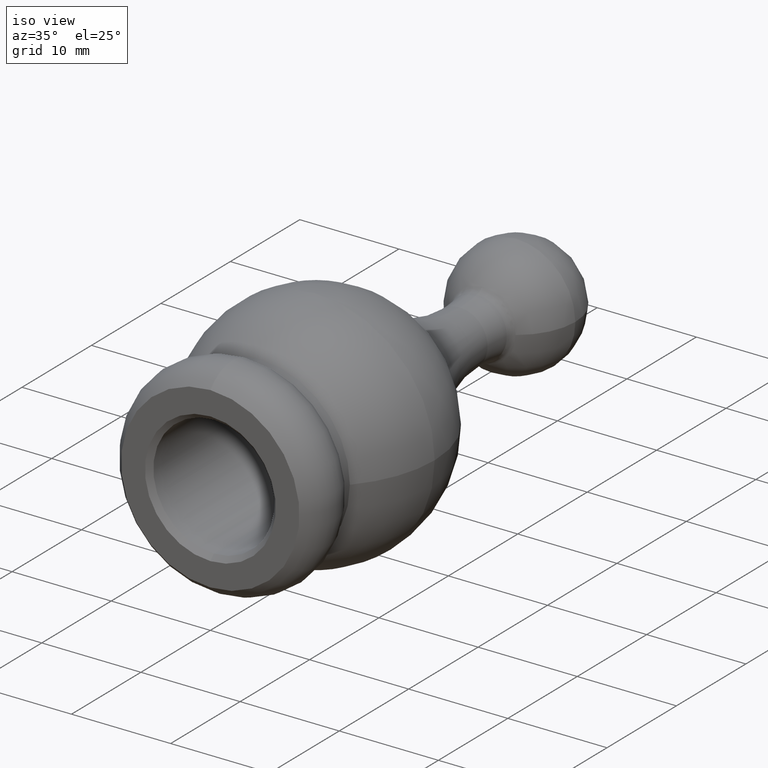
[diagram: clean part render]
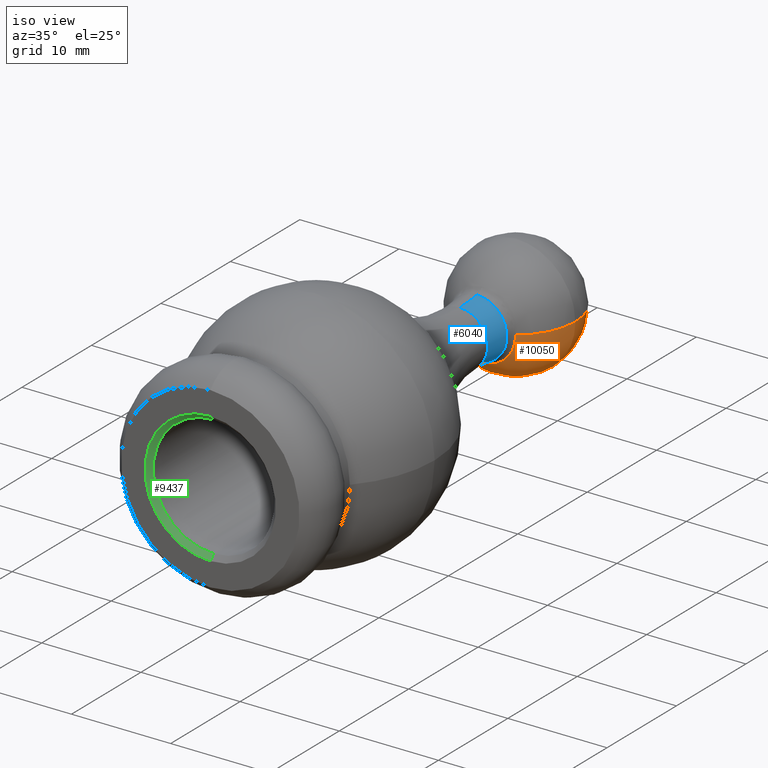
[diagram: same view with three faces highlighted in distinct colors, each labeled with its STEP entity id]
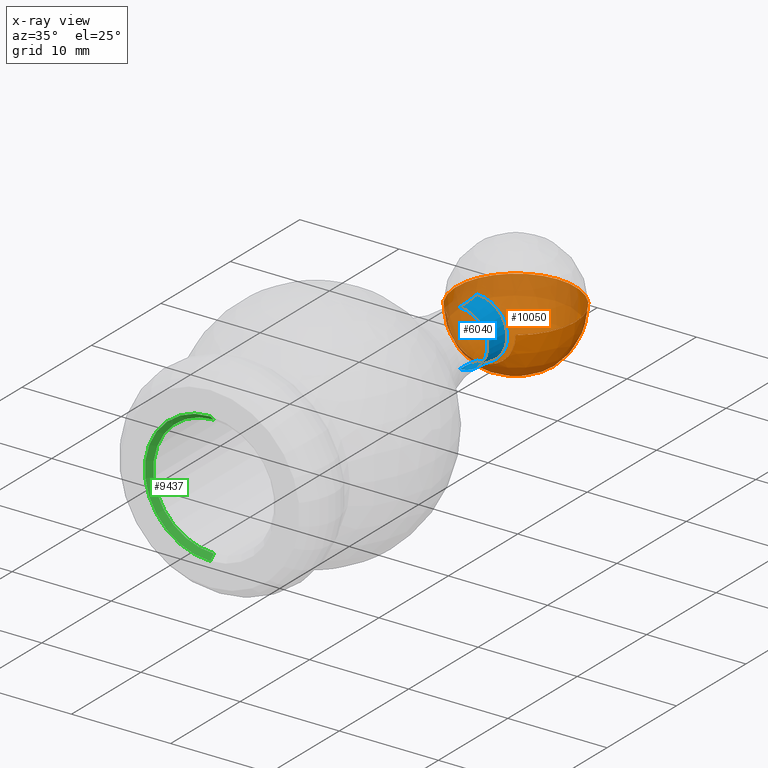
[diagram: x-ray of the same camera — body ghosted, the three highlighted faces saturated]
A machine part, iso view with three faces highlighted in distinct colors.
The next image is the same camera in x-ray (body ghosted, the three faces saturated) — at least one of them is partly hidden behind the body in this view.
Their STEP definitions:

[orange] entity #10050 — the highlighted spherical surface has radius 6 mm.
#104 = CARTESIAN_POINT ( 'NONE',  ( -3.428571428571427049, 39.07608916011026423, 4.198789025648066308E-16 ) ) ;
#190 = AXIS2_PLACEMENT_3D ( 'NONE', #7411, #6553, #7473 ) ;
#1331 = VERTEX_POINT ( 'NONE', #6023 ) ;
#1446 = AXIS2_PLACEMENT_3D ( 'NONE', #4672, #4974, #2339 ) ;
#1498 = ORIENTED_EDGE ( 'NONE', *, *, #3612, .T. ) ;
#1988 = CARTESIAN_POINT ( 'NONE',  ( 0.000000000000000000, 39.07608916011026423, 0.000000000000000000 ) ) ;
#2337 = DIRECTION ( 'NONE',  ( 0.000000000000000000, 0.000000000000000000, -1.000000000000000000 ) ) ;
#2339 = DIRECTION ( 'NONE',  ( 1.000000000000000000, 0.000000000000000000, 0.000000000000000000 ) ) ;
#2481 = AXIS2_PLACEMENT_3D ( 'NONE', #5002, #11061, #2337 ) ;
#2549 = VERTEX_POINT ( 'NONE', #8141 ) ;
#2925 = AXIS2_PLACEMENT_3D ( 'NONE', #8712, #11137, #5209 ) ;
#3338 = EDGE_CURVE ( 'NONE', #1331, #5546, #5086, .T. ) ;
#3530 = VERTEX_POINT ( 'NONE', #11106 ) ;
#3612 = EDGE_CURVE ( 'NONE', #1331, #3530, #3995, .T. ) ;
#3995 = CIRCLE ( 'NONE', #2925, 5.999999999999998224 ) ;
#4462 = SPHERICAL_SURFACE ( 'NONE', #1446, 5.999999999999998224 ) ;
#4554 = DIRECTION ( 'NONE',  ( 0.000000000000000000, 0.000000000000000000, -1.000000000000000000 ) ) ;
#4672 = CARTESIAN_POINT ( 'NONE',  ( 0.000000000000000000, 44.00000000000000711, 0.000000000000000000 ) ) ;
#4974 = DIRECTION ( 'NONE',  ( 0.000000000000000000, 0.000000000000000000, 1.000000000000000000 ) ) ;
#5002 = CARTESIAN_POINT ( 'NONE',  ( 0.000000000000000000, 39.07608916011026423, 0.000000000000000000 ) ) ;
#5086 = CIRCLE ( 'NONE', #190, 5.999999999999998224 ) ;
#5209 = DIRECTION ( 'NONE',  ( -1.000000000000000000, 0.000000000000000000, 0.000000000000000000 ) ) ;
#5546 = VERTEX_POINT ( 'NONE', #104 ) ;
#6023 = CARTESIAN_POINT ( 'NONE',  ( 3.673940397442058882E-16, 50.00000000000000000, 0.000000000000000000 ) ) ;
#6391 = FACE_OUTER_BOUND ( 'NONE', #10052, .T. ) ;
#6410 = CIRCLE ( 'NONE', #2481, 3.428571428571426605 ) ;
#6553 = DIRECTION ( 'NONE',  ( 1.224646799147353207E-16, -0.000000000000000000, 1.000000000000000000 ) ) ;
#6820 = ORIENTED_EDGE ( 'NONE', *, *, #8750, .F. ) ;
#7058 = EDGE_CURVE ( 'NONE', #2549, #3530, #11297, .T. ) ;
#7407 = ORIENTED_EDGE ( 'NONE', *, *, #3338, .F. ) ;
#7411 = CARTESIAN_POINT ( 'NONE',  ( 0.000000000000000000, 44.00000000000000711, 0.000000000000000000 ) ) ;
#7473 = DIRECTION ( 'NONE',  ( 1.000000000000000000, 0.000000000000000000, -1.224646799147353207E-16 ) ) ;
#8129 = DIRECTION ( 'NONE',  ( -0.000000000000000000, -1.000000000000000000, -0.000000000000000000 ) ) ;
#8141 = CARTESIAN_POINT ( 'NONE',  ( 0.000000000000000000, 39.07608916011026423, -3.428571428571425717 ) ) ;
#8712 = CARTESIAN_POINT ( 'NONE',  ( 0.000000000000000000, 44.00000000000000711, 0.000000000000000000 ) ) ;
#8750 = EDGE_CURVE ( 'NONE', #5546, #2549, #6410, .T. ) ;
#8850 = ORIENTED_EDGE ( 'NONE', *, *, #7058, .F. ) ;
#10050 = ADVANCED_FACE ( 'NONE', ( #6391 ), #4462, .T. ) ;
#10052 = EDGE_LOOP ( 'NONE', ( #7407, #1498, #8850, #6820 ) ) ;
#11061 = DIRECTION ( 'NONE',  ( -0.000000000000000000, -1.000000000000000000, -0.000000000000000000 ) ) ;
#11090 = AXIS2_PLACEMENT_3D ( 'NONE', #1988, #8129, #4554 ) ;
#11106 = CARTESIAN_POINT ( 'NONE',  ( 3.428571428571427049, 39.07608916011026423, 0.000000000000000000 ) ) ;
#11137 = DIRECTION ( 'NONE',  ( 0.000000000000000000, 0.000000000000000000, -1.000000000000000000 ) ) ;
#11297 = CIRCLE ( 'NONE', #11090, 3.428571428571426605 ) ;

[blue] entity #6040 — the highlighted toroidal blend (fillet) surface has major radius 18.8166 mm and minor (blend) radius 16 mm.
#398 = CIRCLE ( 'NONE', #8197, 2.816621483785176849 ) ;
#639 = CARTESIAN_POINT ( 'NONE',  ( 0.000000000000000000, 35.91712005116201567, 0.000000000000000000 ) ) ;
#682 = DIRECTION ( 'NONE',  ( 0.000000000000000000, 0.000000000000000000, -1.000000000000000000 ) ) ;
#760 = DIRECTION ( 'NONE',  ( 1.000000000000000000, 0.000000000000000000, -1.224646799147353207E-16 ) ) ;
#1265 = CARTESIAN_POINT ( 'NONE',  ( 0.000000000000000000, 35.91712005116201567, -18.81662148378517685 ) ) ;
#1537 = CARTESIAN_POINT ( 'NONE',  ( 0.000000000000000000, 38.41132517361530319, -3.012225234414318997 ) ) ;
#2422 = DIRECTION ( 'NONE',  ( -1.224646799147353207E-16, 0.000000000000000000, -1.000000000000000000 ) ) ;
#2427 = ORIENTED_EDGE ( 'NONE', *, *, #7688, .F. ) ;
#3156 = AXIS2_PLACEMENT_3D ( 'NONE', #5540, #8028, #10798 ) ;
#3247 = VERTEX_POINT ( 'NONE', #9711 ) ;
#3289 = FACE_OUTER_BOUND ( 'NONE', #9960, .T. ) ;
#3525 = ORIENTED_EDGE ( 'NONE', *, *, #5552, .T. ) ;
#3896 = DIRECTION ( 'NONE',  ( -0.000000000000000000, -1.000000000000000000, -0.000000000000000000 ) ) ;
#4007 = VERTEX_POINT ( 'NONE', #1537 ) ;
#4822 = DIRECTION ( 'NONE',  ( 0.000000000000000000, 0.000000000000000000, -1.000000000000000000 ) ) ;
#5294 = EDGE_CURVE ( 'NONE', #3247, #5568, #9822, .T. ) ;
#5540 = CARTESIAN_POINT ( 'NONE',  ( 0.000000000000000000, 38.41132517361530319, 0.000000000000000000 ) ) ;
#5552 = EDGE_CURVE ( 'NONE', #8330, #4007, #6705, .T. ) ;
#5568 = VERTEX_POINT ( 'NONE', #7386 ) ;
#5894 = CARTESIAN_POINT ( 'NONE',  ( 2.304371527088483740E-15, 35.91712005116201567, 18.81662148378517685 ) ) ;
#6040 = ADVANCED_FACE ( 'NONE', ( #3289 ), #9026, .F. ) ;
#6414 = DIRECTION ( 'NONE',  ( -1.000000000000000000, 0.000000000000000000, 0.000000000000000000 ) ) ;
#6482 = DIRECTION ( 'NONE',  ( -0.000000000000000000, -1.000000000000000000, -0.000000000000000000 ) ) ;
#6670 = CIRCLE ( 'NONE', #3156, 3.012225234414318997 ) ;
#6705 = CIRCLE ( 'NONE', #9250, 16.00000000000000000 ) ;
#7386 = CARTESIAN_POINT ( 'NONE',  ( 3.943850508642223049E-16, 38.41132517361530319, 3.012225234414318997 ) ) ;
#7504 = AXIS2_PLACEMENT_3D ( 'NONE', #5894, #760, #2422 ) ;
#7688 = EDGE_CURVE ( 'NONE', #8330, #3247, #398, .T. ) ;
#8028 = DIRECTION ( 'NONE',  ( -0.000000000000000000, -1.000000000000000000, -0.000000000000000000 ) ) ;
#8197 = AXIS2_PLACEMENT_3D ( 'NONE', #9133, #3896, #4822 ) ;
#8330 = VERTEX_POINT ( 'NONE', #10588 ) ;
#9026 = TOROIDAL_SURFACE ( 'NONE', #9606, 18.81662148378517685, 16.00000000000000000 ) ;
#9069 = DIRECTION ( 'NONE',  ( 0.000000000000000000, 0.000000000000000000, 1.000000000000000000 ) ) ;
#9133 = CARTESIAN_POINT ( 'NONE',  ( 0.000000000000000000, 35.91712005116201567, 0.000000000000000000 ) ) ;
#9250 = AXIS2_PLACEMENT_3D ( 'NONE', #1265, #6414, #9069 ) ;
#9279 = ORIENTED_EDGE ( 'NONE', *, *, #11081, .T. ) ;
#9542 = ORIENTED_EDGE ( 'NONE', *, *, #5294, .F. ) ;
#9606 = AXIS2_PLACEMENT_3D ( 'NONE', #639, #6482, #682 ) ;
#9711 = CARTESIAN_POINT ( 'NONE',  ( 3.449366484527188053E-16, 35.91712005116201567, 2.816621483785176849 ) ) ;
#9822 = CIRCLE ( 'NONE', #7504, 16.00000000000000000 ) ;
#9960 = EDGE_LOOP ( 'NONE', ( #2427, #3525, #9279, #9542 ) ) ;
#10588 = CARTESIAN_POINT ( 'NONE',  ( 0.000000000000000000, 35.91712005116201567, -2.816621483785176849 ) ) ;
#10798 = DIRECTION ( 'NONE',  ( 0.000000000000000000, 0.000000000000000000, -1.000000000000000000 ) ) ;
#11081 = EDGE_CURVE ( 'NONE', #4007, #5568, #6670, .T. ) ;

[green] entity #9437 — the highlighted conical surface has half-angle 45 deg.
#153 = EDGE_LOOP ( 'NONE', ( #11147, #2143, #5003, #7480 ) ) ;
#220 = CARTESIAN_POINT ( 'NONE',  ( 0.000000000000000000, 0.5000000000000056621, -6.099999999999996092 ) ) ;
#771 = CARTESIAN_POINT ( 'NONE',  ( 0.000000000000000000, 0.5000000000000056621, 0.000000000000000000 ) ) ;
#772 = AXIS2_PLACEMENT_3D ( 'NONE', #5053, #11104, #3190 ) ;
#925 = DIRECTION ( 'NONE',  ( 0.000000000000000000, -1.000000000000000000, 0.000000000000000000 ) ) ;
#1103 = DIRECTION ( 'NONE',  ( 0.000000000000000000, -0.7071067811865425767, -0.7071067811865525687 ) ) ;
#1341 = CONICAL_SURFACE ( 'NONE', #6583, 6.099999999999996092, 0.7853981633974552734 ) ;
#1613 = CIRCLE ( 'NONE', #8410, 6.600000000000008527 ) ;
#2143 = ORIENTED_EDGE ( 'NONE', *, *, #5890, .T. ) ;
#2360 = VERTEX_POINT ( 'NONE', #9046 ) ;
#2620 = DIRECTION ( 'NONE',  ( 0.000000000000000000, 0.000000000000000000, -1.000000000000000000 ) ) ;
#2851 = VERTEX_POINT ( 'NONE', #8695 ) ;
#3190 = DIRECTION ( 'NONE',  ( 0.000000000000000000, 0.000000000000000000, -1.000000000000000000 ) ) ;
#5003 = ORIENTED_EDGE ( 'NONE', *, *, #7958, .F. ) ;
#5053 = CARTESIAN_POINT ( 'NONE',  ( 0.000000000000000000, 0.5000000000000056621, 0.000000000000000000 ) ) ;
#5746 = VECTOR ( 'NONE', #11259, 999.9999999999998863 ) ;
#5890 = EDGE_CURVE ( 'NONE', #11154, #2851, #6145, .T. ) ;
#6145 = LINE ( 'NONE', #10401, #5746 ) ;
#6583 = AXIS2_PLACEMENT_3D ( 'NONE', #771, #925, #2620 ) ;
#6676 = DIRECTION ( 'NONE',  ( 0.000000000000000000, 0.000000000000000000, -1.000000000000000000 ) ) ;
#6700 = LINE ( 'NONE', #220, #8875 ) ;
#7212 = EDGE_CURVE ( 'NONE', #11154, #10240, #7654, .T. ) ;
#7480 = ORIENTED_EDGE ( 'NONE', *, *, #8626, .F. ) ;
#7654 = CIRCLE ( 'NONE', #772, 6.099999999999996092 ) ;
#7660 = FACE_OUTER_BOUND ( 'NONE', #153, .T. ) ;
#7958 = EDGE_CURVE ( 'NONE', #2360, #2851, #1613, .T. ) ;
#8322 = DIRECTION ( 'NONE',  ( 0.000000000000000000, 1.000000000000000000, 0.000000000000000000 ) ) ;
#8410 = AXIS2_PLACEMENT_3D ( 'NONE', #9266, #8322, #6676 ) ;
#8626 = EDGE_CURVE ( 'NONE', #10240, #2360, #6700, .T. ) ;
#8695 = CARTESIAN_POINT ( 'NONE',  ( 8.082668874372541866E-16, 0.000000000000000000, 6.600000000000008527 ) ) ;
#8875 = VECTOR ( 'NONE', #1103, 999.9999999999998863 ) ;
#9046 = CARTESIAN_POINT ( 'NONE',  ( 0.000000000000000000, 0.000000000000000000, -6.600000000000008527 ) ) ;
#9266 = CARTESIAN_POINT ( 'NONE',  ( 0.000000000000000000, 0.000000000000000000, 0.000000000000000000 ) ) ;
#9437 = ADVANCED_FACE ( 'NONE', ( #7660 ), #1341, .F. ) ;
#10240 = VERTEX_POINT ( 'NONE', #11310 ) ;
#10401 = CARTESIAN_POINT ( 'NONE',  ( 7.470345474798850348E-16, 0.5000000000000056621, 6.099999999999996092 ) ) ;
#10825 = CARTESIAN_POINT ( 'NONE',  ( 7.470345474798850348E-16, 0.5000000000000056621, 6.099999999999996092 ) ) ;
#11104 = DIRECTION ( 'NONE',  ( 0.000000000000000000, -1.000000000000000000, 0.000000000000000000 ) ) ;
#11147 = ORIENTED_EDGE ( 'NONE', *, *, #7212, .F. ) ;
#11154 = VERTEX_POINT ( 'NONE', #10825 ) ;
#11259 = DIRECTION ( 'NONE',  ( 8.659560562354994488E-17, -0.7071067811865425767, 0.7071067811865525687 ) ) ;
#11310 = CARTESIAN_POINT ( 'NONE',  ( 0.000000000000000000, 0.5000000000000056621, -6.099999999999996092 ) ) ;